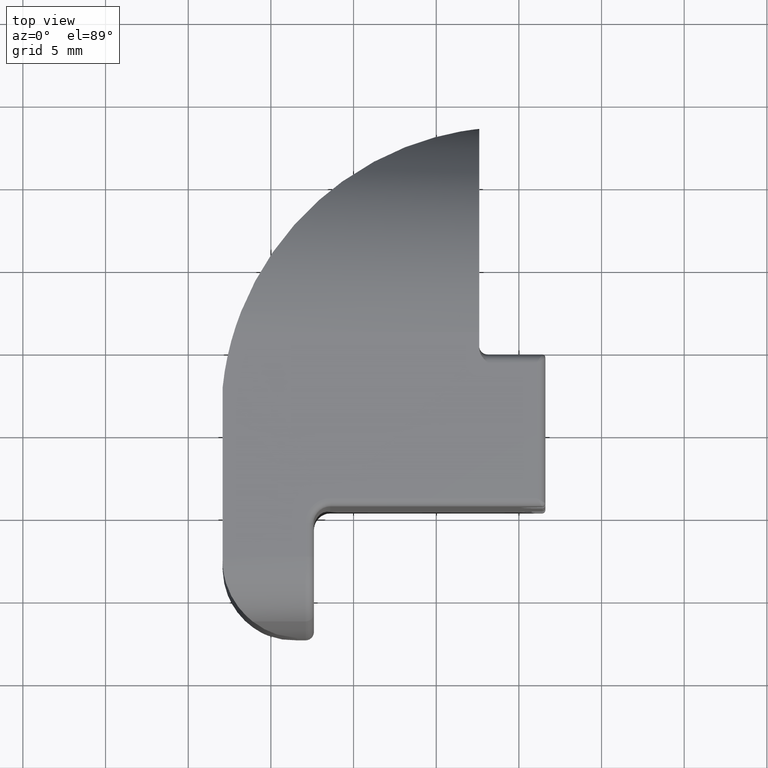
[diagram: clean part render]
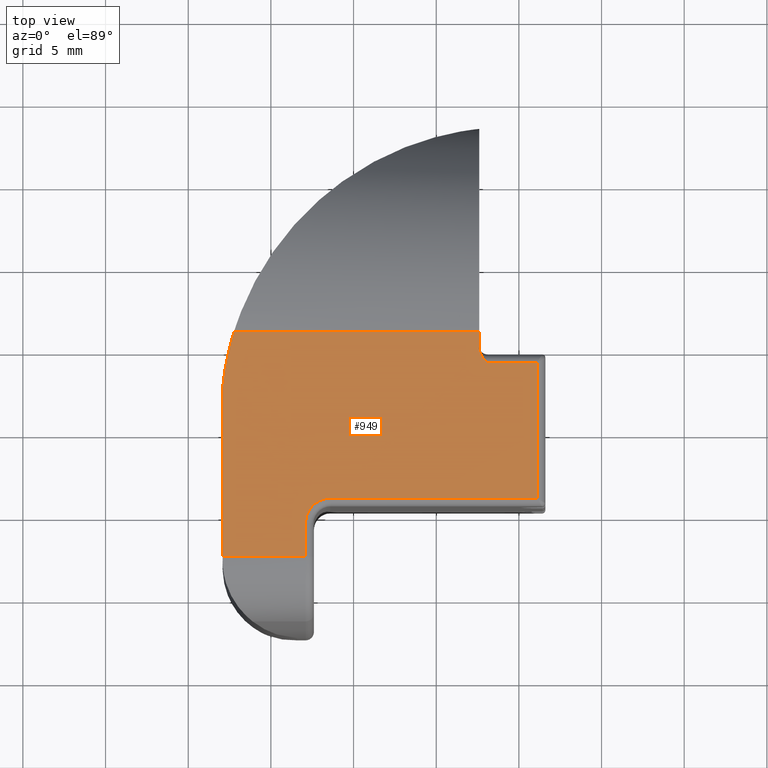
[diagram: same view with one face highlighted and labeled with its STEP entity id]
A machine part, top view. The second image highlights one B-rep face of the part: STEP entity #949.
In plain terms, the highlighted planar face has unit normal (0, 0, 1).
Its self-contained STEP definition (entity closure, byte-faithful):
#36=PLANE('',#1067);
#52=LINE('',#1438,#121);
#63=LINE('',#1621,#132);
#65=LINE('',#1630,#134);
#67=LINE('',#1633,#136);
#69=LINE('',#1636,#138);
#83=LINE('',#1691,#152);
#84=LINE('',#1706,#153);
#85=LINE('',#1708,#154);
#86=LINE('',#1710,#155);
#87=LINE('',#1712,#156);
#88=LINE('',#1714,#157);
#89=LINE('',#1715,#158);
#121=VECTOR('',#1137,10.);
#132=VECTOR('',#1232,10.);
#134=VECTOR('',#1244,10.);
#136=VECTOR('',#1248,10.);
#138=VECTOR('',#1252,10.);
#152=VECTOR('',#1280,10.);
#153=VECTOR('',#1285,10.);
#154=VECTOR('',#1286,10.);
#155=VECTOR('',#1287,10.);
#156=VECTOR('',#1288,10.);
#157=VECTOR('',#1289,10.);
#158=VECTOR('',#1290,10.);
#245=FACE_OUTER_BOUND('',#303,.T.);
#303=EDGE_LOOP('',(#753,#754,#755,#756,#757,#758,#759,#760,#761,#762,#763,
#764,#765,#766));
#334=B_SPLINE_CURVE_WITH_KNOTS('',3,(#1423,#1424,#1425,#1426,#1427,#1428),
 .UNSPECIFIED.,.F.,.F.,(4,2,4),(0.252766120019255,0.29099773330059,0.349779142867044),
 .UNSPECIFIED.);
#383=CIRCLE('',#1054,1.5);
#401=VERTEX_POINT('',#1421);
#402=VERTEX_POINT('',#1422);
#405=VERTEX_POINT('',#1436);
#407=VERTEX_POINT('',#1465);
#410=VERTEX_POINT('',#1496);
#433=VERTEX_POINT('',#1613);
#435=VERTEX_POINT('',#1619);
#437=VERTEX_POINT('',#1625);
#449=VERTEX_POINT('',#1690);
#451=VERTEX_POINT('',#1705);
#452=VERTEX_POINT('',#1707);
#453=VERTEX_POINT('',#1709);
#454=VERTEX_POINT('',#1711);
#455=VERTEX_POINT('',#1713);
#490=EDGE_CURVE('',#401,#402,#334,.T.);
#496=EDGE_CURVE('',#405,#401,#52,.T.);
#538=EDGE_CURVE('',#435,#433,#63,.T.);
#541=EDGE_CURVE('',#437,#435,#383,.T.);
#543=EDGE_CURVE('',#410,#437,#65,.T.);
#545=EDGE_CURVE('',#407,#410,#67,.T.);
#547=EDGE_CURVE('',#402,#407,#69,.T.);
#565=EDGE_CURVE('',#449,#433,#83,.T.);
#568=EDGE_CURVE('',#451,#405,#84,.T.);
#569=EDGE_CURVE('',#451,#452,#85,.T.);
#570=EDGE_CURVE('',#452,#453,#86,.T.);
#571=EDGE_CURVE('',#453,#454,#87,.T.);
#572=EDGE_CURVE('',#454,#455,#88,.T.);
#573=EDGE_CURVE('',#455,#449,#89,.T.);
#753=ORIENTED_EDGE('',*,*,#538,.F.);
#754=ORIENTED_EDGE('',*,*,#541,.F.);
#755=ORIENTED_EDGE('',*,*,#543,.F.);
#756=ORIENTED_EDGE('',*,*,#545,.F.);
#757=ORIENTED_EDGE('',*,*,#547,.F.);
#758=ORIENTED_EDGE('',*,*,#490,.F.);
#759=ORIENTED_EDGE('',*,*,#496,.F.);
#760=ORIENTED_EDGE('',*,*,#568,.F.);
#761=ORIENTED_EDGE('',*,*,#569,.T.);
#762=ORIENTED_EDGE('',*,*,#570,.T.);
#763=ORIENTED_EDGE('',*,*,#571,.T.);
#764=ORIENTED_EDGE('',*,*,#572,.T.);
#765=ORIENTED_EDGE('',*,*,#573,.T.);
#766=ORIENTED_EDGE('',*,*,#565,.T.);
#949=ADVANCED_FACE('',(#245),#36,.T.);
#1054=AXIS2_PLACEMENT_3D('',#1627,#1238,#1239);
#1067=AXIS2_PLACEMENT_3D('',#1704,#1283,#1284);
#1137=DIRECTION('',(2.40552340947462E-16,-1.,0.));
#1232=DIRECTION('',(3.26536183713277E-16,-1.,0.));
#1238=DIRECTION('center_axis',(0.,0.,1.));
#1239=DIRECTION('ref_axis',(-0.707106781186548,0.707106781186547,0.));
#1244=DIRECTION('',(-1.,-4.77048955893618E-16,0.));
#1248=DIRECTION('',(2.52323414687533E-16,-1.,0.));
#1252=DIRECTION('',(1.,2.92164552916821E-16,0.));
#1280=DIRECTION('',(1.,3.5527136788005E-16,0.));
#1283=DIRECTION('center_axis',(0.,0.,1.));
#1284=DIRECTION('ref_axis',(1.,0.,0.));
#1285=DIRECTION('',(1.,2.86144407082359E-16,0.));
#1286=DIRECTION('',(-0.290740890747687,-0.956801826109901,0.));
#1287=DIRECTION('',(-0.237807684756606,-0.971312259302179,0.));
#1288=DIRECTION('',(-0.183905637707172,-0.982943902987103,0.));
#1289=DIRECTION('',(-0.128206675280078,-0.991747472098431,0.));
#1290=DIRECTION('',(0.,-1.,0.));
#1421=CARTESIAN_POINT('',(2.60000779170078,4.96602540378439,12.5));
#1422=CARTESIAN_POINT('',(3.10000779170078,4.09999999999995,12.5));
#1423=CARTESIAN_POINT('Ctrl Pts',(2.60000779170078,4.96602540378439,12.5));
#1424=CARTESIAN_POINT('Ctrl Pts',(2.60000779170078,4.83858669284661,12.5));
#1425=CARTESIAN_POINT('Ctrl Pts',(2.64479379164966,4.69236523657539,12.5));
#1426=CARTESIAN_POINT('Ctrl Pts',(2.79805143360642,4.40761163610196,12.5));
#1427=CARTESIAN_POINT('Ctrl Pts',(2.9614586806603,4.23854911104043,12.5));
#1428=CARTESIAN_POINT('Ctrl Pts',(3.10000779170078,4.09999999999995,12.5));
#1436=CARTESIAN_POINT('',(2.60000779170078,5.94592251630968,12.5));
#1438=CARTESIAN_POINT('',(2.60000779170078,3.37586824172682,12.5));
#1465=CARTESIAN_POINT('',(6.09999999999996,4.09999999999995,12.5));
#1496=CARTESIAN_POINT('',(6.09999999999996,-4.09999999999996,12.5));
#1613=CARTESIAN_POINT('',(-7.90000000000004,-7.64710241013085,12.5));
#1619=CARTESIAN_POINT('',(-7.90000000000004,-5.59999999999996,12.5));
#1621=CARTESIAN_POINT('',(-7.90000000000004,-5.12413175827319,12.5));
#1625=CARTESIAN_POINT('',(-6.40000000000005,-4.09999999999996,12.5));
#1627=CARTESIAN_POINT('Origin',(-6.40000000000005,-5.59999999999996,12.5));
#1630=CARTESIAN_POINT('',(-4.91994856240162,-4.09999999999996,12.5));
#1633=CARTESIAN_POINT('',(6.09999999999996,-1.12413175827318,12.5));
#1636=CARTESIAN_POINT('',(1.48005143759842,4.09999999999995,12.5));
#1690=CARTESIAN_POINT('',(-12.9169999873223,-7.64710241013085,12.5));
#1691=CARTESIAN_POINT('',(-7.40000000000004,-7.64710241013085,12.5));
#1704=CARTESIAN_POINT('Origin',(-3.4398971248032,2.15173648345368,12.5));
#1705=CARTESIAN_POINT('',(-12.2310964119483,5.94592251630966,12.5));
#1706=CARTESIAN_POINT('',(2.60000779170078,5.94592251630967,12.5));
#1707=CARTESIAN_POINT('',(-12.3969999757009,5.39994897833073,12.5));
#1708=CARTESIAN_POINT('',(-12.1219999719219,6.30494897719359,12.5));
#1709=CARTESIAN_POINT('',(-12.621999979536,4.48094897926974,12.5));
#1710=CARTESIAN_POINT('',(-12.3969999757009,5.39994897833073,12.5));
#1711=CARTESIAN_POINT('',(-12.7959999834166,3.55094897999557,12.5));
#1712=CARTESIAN_POINT('',(-12.621999979536,4.48094897926974,12.5));
#1713=CARTESIAN_POINT('',(-12.9169999873223,2.61494898050065,12.5));
#1714=CARTESIAN_POINT('',(-12.7959999834166,3.55094897999557,12.5));
#1715=CARTESIAN_POINT('',(-12.9169999873223,2.61494898050065,12.5));